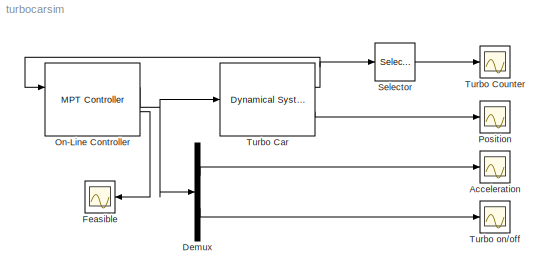
MODEL turbocarsim
KIND model
CONFIG AbsTol = auto
CONFIG FixedStep = auto
CONFIG MaxStep = auto
CONFIG MinStep = auto
CONFIG RelTol = 1e-3
CONFIG Solver = ode45
CONFIG SolverMode = Auto
CONFIG StartTime = 0.0
CONFIG StopTime = 20
BLOCK [Scope] Acceleration
  DataFormat = StructureWithTime
  Decimation = 1
  Floating = off
  Grid = on
  LimitDataPoints = on
  MaxDataPoints = 5000
  NumInputPorts = 1
  Ports = [1]
  SampleInput = off
  SampleTime = 0
  SaveName = ScopeData1
  SaveToWorkspace = off
  TickLabels = OneTimeTick
  TimeRange = 20
  YMax = 1.5
  YMin = -1
  ZoomMode = on
BLOCK [Demux] Demux
  BusSelectionMode = off
  Outputs = 2
  Ports = [1, 2]
BLOCK [Scope] Feasible
  DataFormat = StructureWithTime
  Decimation = 1
  Floating = off
  Grid = on
  LimitDataPoints = on
  MaxDataPoints = 5000
  NumInputPorts = 1
  Ports = [1]
  SampleInput = off
  SampleTime = 0
  SaveName = ScopeData4
  SaveToWorkspace = off
  TickLabels = OneTimeTick
  TimeRange = 20
  YMax = 1
  YMin = 0
  ZoomMode = on
BLOCK [Reference] On-Line Controller  REF=mpt_sim/MPT Controller  (lib defined in mdl_5038361577fd, mdl_5af201d48cda)
  Ports = [2, 2]
  SourceBlock = mpt_sim/MPT Controller
  SourceType = MPT Controller
  Ts = []
  ctrl = onlc
  infbreak = on
BLOCK [Scope] Position
  DataFormat = StructureWithTime
  Decimation = 1
  Floating = off
  Grid = on
  LimitDataPoints = on
  MaxDataPoints = 5000
  NumInputPorts = 1
  Ports = [1]
  SampleInput = off
  SampleTime = 0
  SaveName = ScopeData
  SaveToWorkspace = off
  TickLabels = OneTimeTick
  TimeRange = 20
  YMax = 20
  YMin = 0
  ZoomMode = on
BLOCK [Selector] Selector
  ColumnSrc = Internal
  Columns = 1
  ElementSrc = Internal
  Elements = 3
  InputPortWidth = 3
  InputType = Vector
  Ports = [1, 1]
  RowSrc = Internal
  Rows = 1
BLOCK [Reference] Turbo Car  REF=mpt_sim/Dynamical System  (lib defined in mdl_5038361577fd, mdl_5af201d48cda)
  Ports = [1, 2]
  SourceBlock = mpt_sim/Dynamical System
  SourceType = Dynamical System with Constraints
  Ts = []
  constr = on
  sysStruct = sysStruct
  x0 = [20;0;5]
BLOCK [Scope] Turbo Counter
  DataFormat = StructureWithTime
  Decimation = 1
  Floating = off
  Grid = on
  LimitDataPoints = on
  MaxDataPoints = 5000
  NumInputPorts = 1
  Ports = [1]
  SampleInput = off
  SampleTime = 0
  SaveName = ScopeData3
  SaveToWorkspace = off
  TickLabels = OneTimeTick
  TimeRange = auto
  YMax = 5
  YMin = -5
  ZoomMode = on
BLOCK [Scope] Turbo on//off
  DataFormat = StructureWithTime
  Decimation = 1
  Floating = off
  Grid = on
  LimitDataPoints = on
  MaxDataPoints = 5000
  NumInputPorts = 1
  Ports = [1]
  SampleInput = off
  SampleTime = 0
  SaveName = ScopeData2
  SaveToWorkspace = off
  TickLabels = OneTimeTick
  TimeRange = 20
  YMax = 1
  YMin = 0
  ZoomMode = on
LINE Demux:1 -> Acceleration:1
LINE Demux:2 -> Turbo on//off:1
NET On-Line Controller:1 -> Demux:1, Turbo Car:1
LINE On-Line Controller:2 -> Feasible:1
LINE Selector:1 -> Turbo Counter:1
NET Turbo Car:1 -> On-Line Controller:1, Selector:1
LINE Turbo Car:2 -> Position:1
note: NET lines group one-source signal fan-out (src -> all destinations, sorted); 1:1 wires keep LINE
